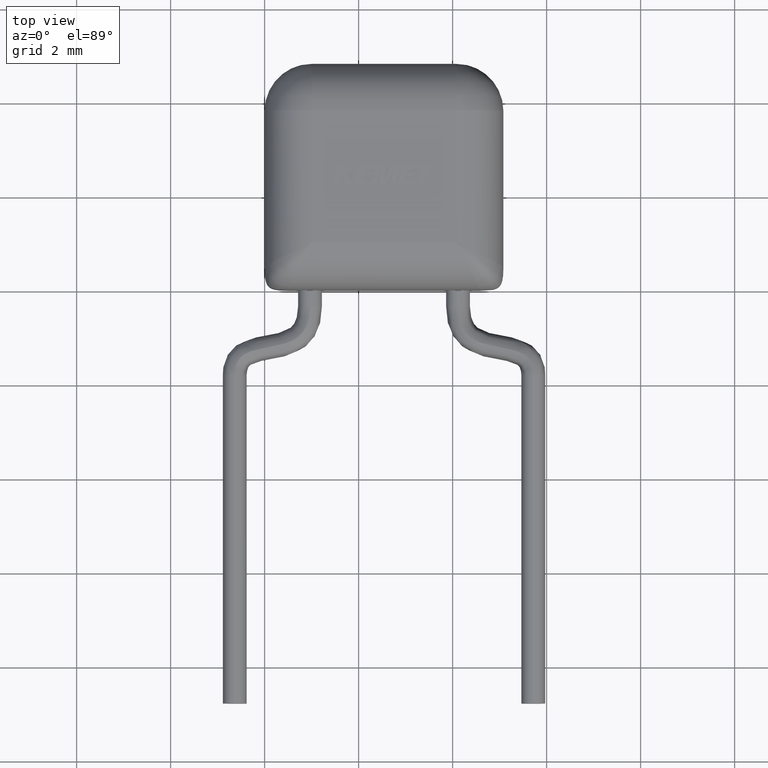
[diagram: clean part render]
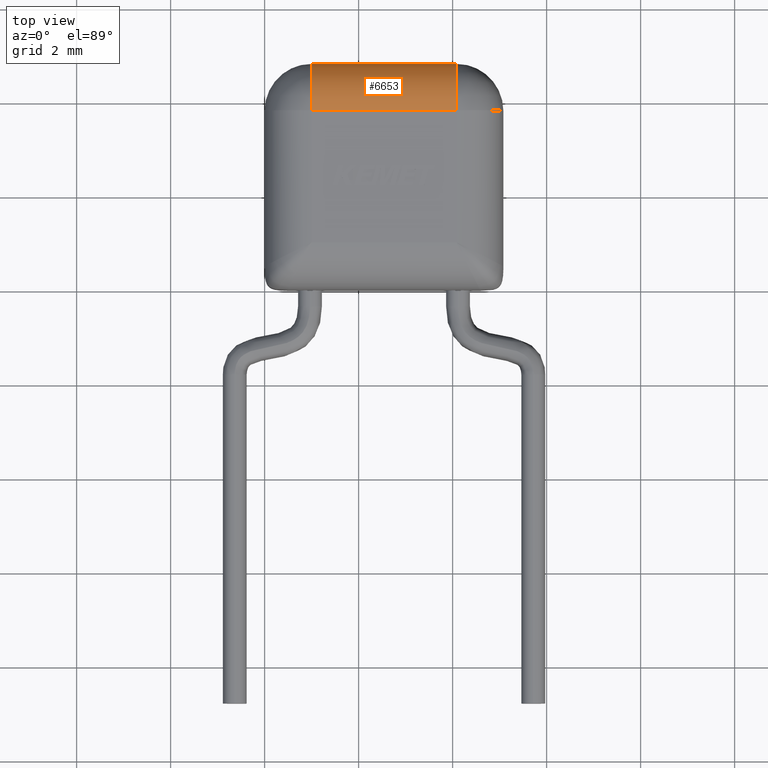
[diagram: same view with one face highlighted and labeled with its STEP entity id]
A machine part, top view. The second image highlights one B-rep face of the part: STEP entity #6653.
In plain terms, the highlighted cylindrical surface (partial cylindrical patch) has radius 1 mm, axis along (-1, 0, 0).
Its self-contained STEP definition (entity closure, byte-faithful):
#141 = VERTEX_POINT ( 'NONE', #6658 ) ;
#223 = DIRECTION ( 'NONE',  ( 0.0000000000000000000, 0.0000000000000000000, 1.000000000000000000 ) ) ;
#351 = CIRCLE ( 'NONE', #2317, 1.000000000000000000 ) ;
#456 = VERTEX_POINT ( 'NONE', #5431 ) ;
#514 = EDGE_CURVE ( 'NONE', #456, #141, #351, .T. ) ;
#543 = DIRECTION ( 'NONE',  ( 1.000000000000000000, -0.0000000000000000000, -0.0000000000000000000 ) ) ;
#653 = ORIENTED_EDGE ( 'NONE', *, *, #514, .F. ) ;
#656 = EDGE_CURVE ( 'NONE', #686, #456, #6416, .T. ) ;
#686 = VERTEX_POINT ( 'NONE', #4637 ) ;
#814 = DIRECTION ( 'NONE',  ( -1.000000000000000000, 0.0000000000000000000, 0.0000000000000000000 ) ) ;
#940 = LINE ( 'NONE', #5260, #6282 ) ;
#1419 = CARTESIAN_POINT ( 'NONE',  ( 0.9999999999999997800, 3.810759999999999700, 3.180000000000000200 ) ) ;
#1927 = EDGE_LOOP ( 'NONE', ( #2505, #2519, #653, #6225 ) ) ;
#2116 = CARTESIAN_POINT ( 'NONE',  ( 0.9999999999999997800, 3.810759999999999700, 2.180000000000000200 ) ) ;
#2219 = VECTOR ( 'NONE', #543, 1000.000000000000000 ) ;
#2317 = AXIS2_PLACEMENT_3D ( 'NONE', #4032, #5542, #2484 ) ;
#2484 = DIRECTION ( 'NONE',  ( 0.0000000000000000000, 0.0000000000000000000, -1.000000000000000000 ) ) ;
#2505 = ORIENTED_EDGE ( 'NONE', *, *, #2578, .T. ) ;
#2519 = ORIENTED_EDGE ( 'NONE', *, *, #4592, .F. ) ;
#2578 = EDGE_CURVE ( 'NONE', #686, #5909, #6459, .T. ) ;
#2628 = CARTESIAN_POINT ( 'NONE',  ( 0.0000000000000000000, 4.810760000000000100, 2.180000000000000200 ) ) ;
#2779 = AXIS2_PLACEMENT_3D ( 'NONE', #2116, #6247, #3167 ) ;
#3167 = DIRECTION ( 'NONE',  ( 0.0000000000000000000, 0.0000000000000000000, -1.000000000000000000 ) ) ;
#3199 = DIRECTION ( 'NONE',  ( -1.000000000000000000, 0.0000000000000000000, 0.0000000000000000000 ) ) ;
#3546 = FACE_OUTER_BOUND ( 'NONE', #1927, .T. ) ;
#4032 = CARTESIAN_POINT ( 'NONE',  ( 4.079999999999999200, 3.810759999999999700, 2.180000000000000200 ) ) ;
#4592 = EDGE_CURVE ( 'NONE', #141, #5909, #940, .T. ) ;
#4637 = CARTESIAN_POINT ( 'NONE',  ( 0.9999999999999997800, 4.810760000000000100, 2.180000000000000200 ) ) ;
#4924 = CARTESIAN_POINT ( 'NONE',  ( 0.0000000000000000000, 3.810759999999999700, 2.180000000000000200 ) ) ;
#5065 = AXIS2_PLACEMENT_3D ( 'NONE', #4924, #814, #223 ) ;
#5260 = CARTESIAN_POINT ( 'NONE',  ( 0.0000000000000000000, 3.810759999999999700, 3.180000000000000200 ) ) ;
#5431 = CARTESIAN_POINT ( 'NONE',  ( 4.079999999999999200, 4.810760000000000100, 2.180000000000000200 ) ) ;
#5475 = CYLINDRICAL_SURFACE ( 'NONE', #5065, 1.000000000000000000 ) ;
#5542 = DIRECTION ( 'NONE',  ( 1.000000000000000000, 0.0000000000000000000, 0.0000000000000000000 ) ) ;
#5909 = VERTEX_POINT ( 'NONE', #1419 ) ;
#6225 = ORIENTED_EDGE ( 'NONE', *, *, #656, .F. ) ;
#6247 = DIRECTION ( 'NONE',  ( 1.000000000000000000, 0.0000000000000000000, 0.0000000000000000000 ) ) ;
#6282 = VECTOR ( 'NONE', #3199, 1000.000000000000000 ) ;
#6416 = LINE ( 'NONE', #2628, #2219 ) ;
#6459 = CIRCLE ( 'NONE', #2779, 1.000000000000000000 ) ;
#6653 = ADVANCED_FACE ( 'NONE', ( #3546 ), #5475, .T. ) ;
#6658 = CARTESIAN_POINT ( 'NONE',  ( 4.079999999999999200, 3.810759999999999700, 3.180000000000000200 ) ) ;